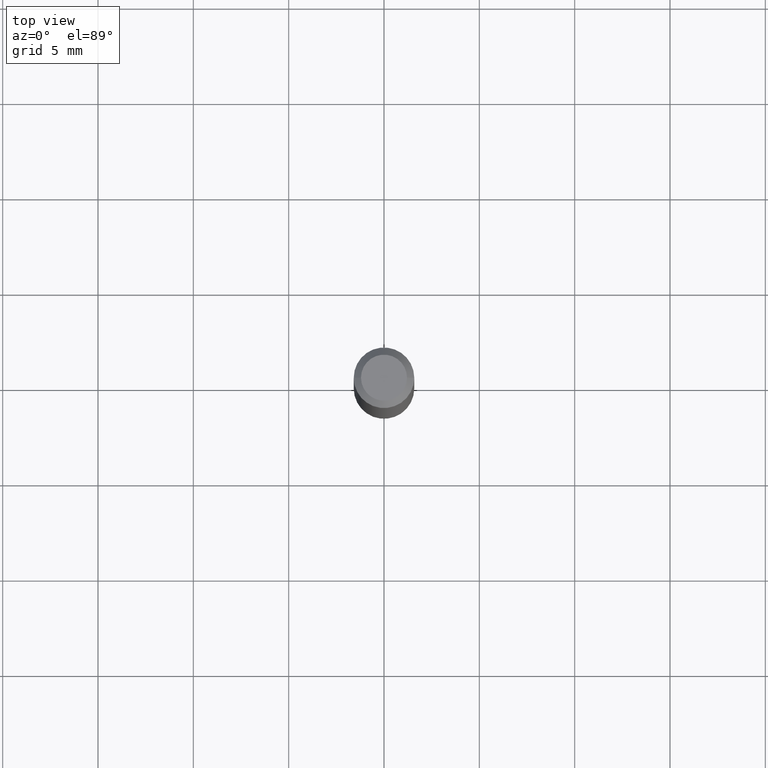
[diagram: clean part render]
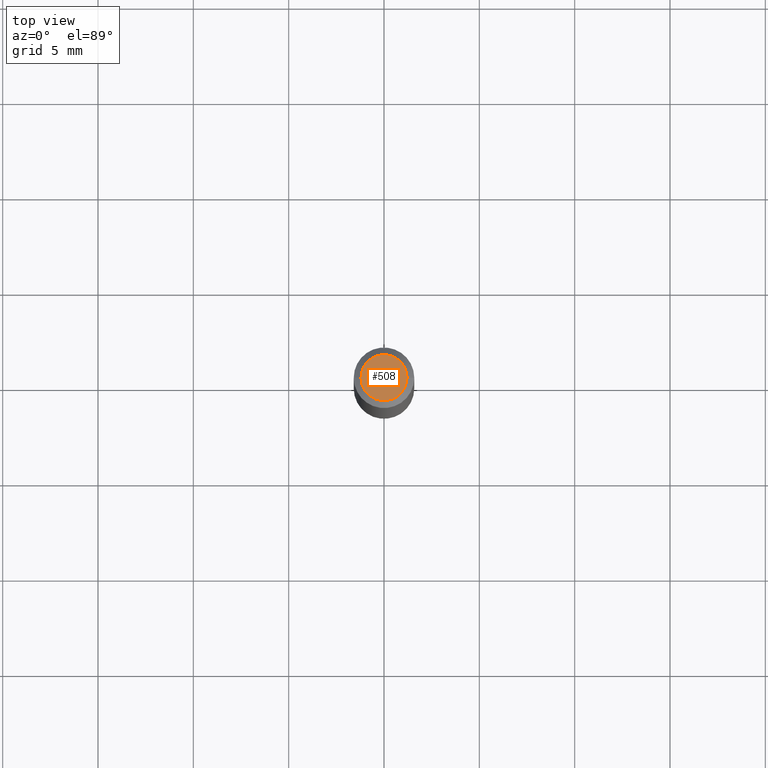
[diagram: same view with one face highlighted and labeled with its STEP entity id]
A machine part, top view. The second image highlights one B-rep face of the part: STEP entity #508.
In plain terms, the highlighted planar face has unit normal (0, -0, -1).
Its self-contained STEP definition (entity closure, byte-faithful):
#43 = DIRECTION ( 'NONE',  ( -2.445468806185136597E-29, 3.491481338843145583E-15, 1.000000000000000000 ) ) ;
#47 = DIRECTION ( 'NONE',  ( 1.000000000000000000, -6.982962677686266711E-15, 4.852736867747365086E-29 ) ) ;
#78 = PLANE ( 'NONE',  #237 ) ;
#80 = CARTESIAN_POINT ( 'NONE',  ( 3.316907271900976589E-16, 0.04750000000000000749, -2.925296391183627249E-17 ) ) ;
#139 = AXIS2_PLACEMENT_3D ( 'NONE', #455, #215, #47 ) ;
#151 = VERTEX_POINT ( 'NONE', #333 ) ;
#186 = AXIS2_PLACEMENT_3D ( 'NONE', #253, #43, #416 ) ;
#215 = DIRECTION ( 'NONE',  ( -2.445468806185136597E-29, 3.491481338843145583E-15, 1.000000000000000000 ) ) ;
#224 = EDGE_CURVE ( 'NONE', #151, #506, #370, .T. ) ;
#233 = EDGE_CURVE ( 'NONE', #506, #151, #439, .T. ) ;
#237 = AXIS2_PLACEMENT_3D ( 'NONE', #80, #397, #240 ) ;
#240 = DIRECTION ( 'NONE',  ( -1.000000000000000000, 6.982962677686265922E-15, -4.876176775795935793E-29 ) ) ;
#253 = CARTESIAN_POINT ( 'NONE',  ( -6.680649051745406845E-45, 9.538196290434862081E-31, 2.731847993664263218E-16 ) ) ;
#261 = ORIENTED_EDGE ( 'NONE', *, *, #224, .T. ) ;
#267 = ORIENTED_EDGE ( 'NONE', *, *, #233, .T. ) ;
#333 = CARTESIAN_POINT ( 'NONE',  ( -0.04750000000000000749, 3.578768372314221353E-16, 2.731847993664239060E-16 ) ) ;
#370 = CIRCLE ( 'NONE', #139, 0.04750000000000000749 ) ;
#397 = DIRECTION ( 'NONE',  ( 2.438088387897960049E-29, -3.491481338843145188E-15, -1.000000000000000000 ) ) ;
#401 = CARTESIAN_POINT ( 'NONE',  ( 0.04750000000000000749, -4.035134999187568762E-16, 2.731847993664288856E-16 ) ) ;
#416 = DIRECTION ( 'NONE',  ( 1.000000000000000000, -6.982962677686266711E-15, 4.852736867747365086E-29 ) ) ;
#438 = FACE_OUTER_BOUND ( 'NONE', #464, .T. ) ;
#439 = CIRCLE ( 'NONE', #186, 0.04750000000000000749 ) ;
#455 = CARTESIAN_POINT ( 'NONE',  ( -6.680649051745406845E-45, 9.538196290434862081E-31, 2.731847993664263218E-16 ) ) ;
#464 = EDGE_LOOP ( 'NONE', ( #261, #267 ) ) ;
#506 = VERTEX_POINT ( 'NONE', #401 ) ;
#508 = ADVANCED_FACE ( 'NONE', ( #438 ), #78, .F. ) ;